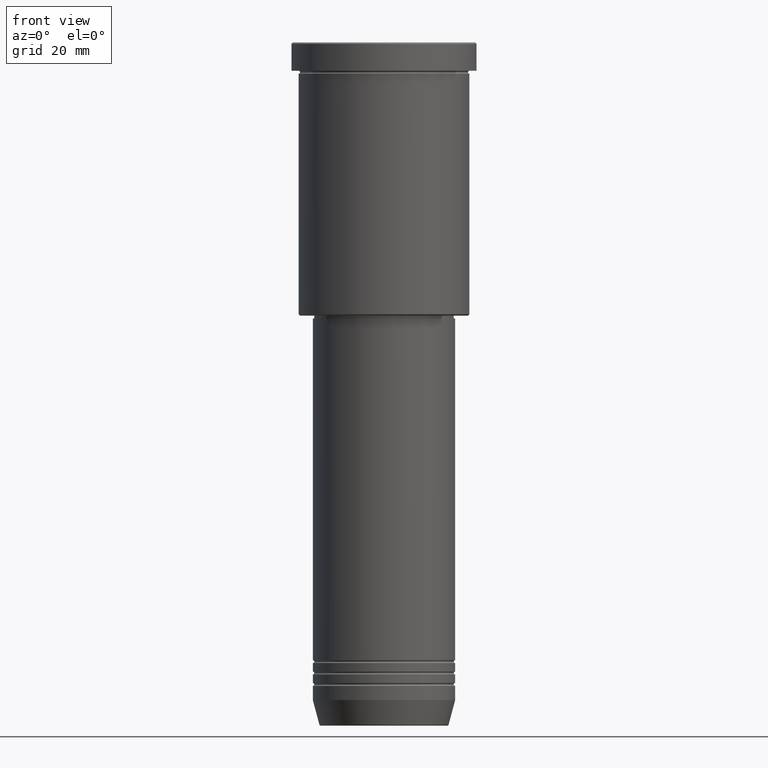
[diagram: clean part render]
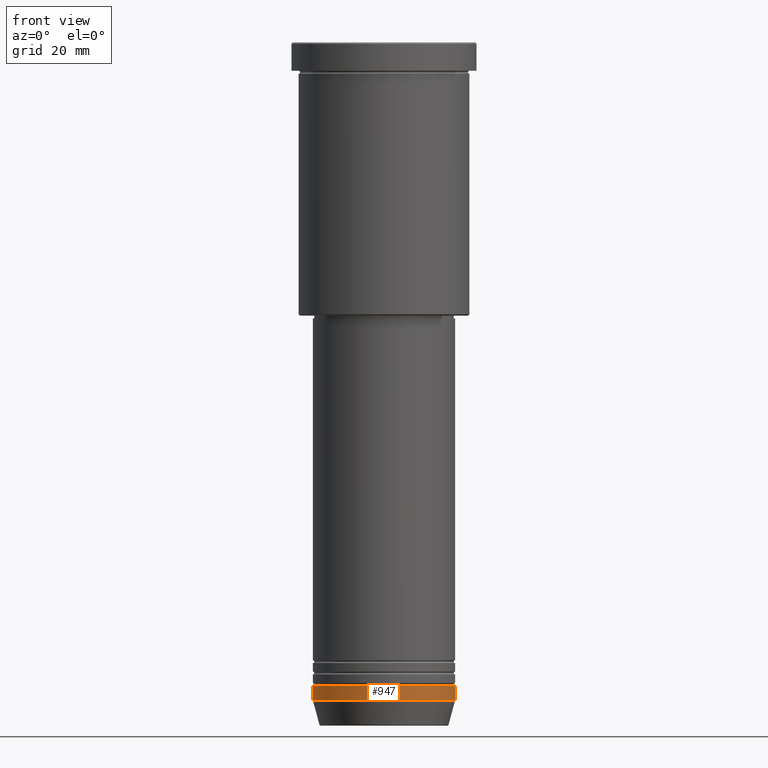
[diagram: same view with one face highlighted and labeled with its STEP entity id]
A machine part, front view. The second image highlights one B-rep face of the part: STEP entity #947.
In plain terms, the highlighted cylindrical surface (partial cylindrical patch) has radius 25 mm, axis along (-0, -0, 1).
Its self-contained STEP definition (entity closure, byte-faithful):
#42 = CARTESIAN_POINT ( 'NONE',  ( 0.000000000000000000, 0.000000000000000000, -231.0000000000000000 ) ) ;
#69 = CARTESIAN_POINT ( 'NONE',  ( -25.00000000000000000, 3.061616997868383043E-15, 0.000000000000000000 ) ) ;
#84 = VERTEX_POINT ( 'NONE', #546 ) ;
#91 = CIRCLE ( 'NONE', #801, 25.00000000000000000 ) ;
#96 = EDGE_CURVE ( 'NONE', #462, #84, #307, .T. ) ;
#160 = VECTOR ( 'NONE', #629, 1000.000000000000000 ) ;
#191 = CARTESIAN_POINT ( 'NONE',  ( -25.00000000000000000, 3.061616997868383043E-15, -231.0000000000000000 ) ) ;
#211 = EDGE_CURVE ( 'NONE', #274, #84, #1175, .T. ) ;
#220 = ORIENTED_EDGE ( 'NONE', *, *, #522, .F. ) ;
#228 = AXIS2_PLACEMENT_3D ( 'NONE', #916, #282, #553 ) ;
#231 = DIRECTION ( 'NONE',  ( 1.000000000000000000, 0.000000000000000000, 0.000000000000000000 ) ) ;
#274 = VERTEX_POINT ( 'NONE', #1036 ) ;
#282 = DIRECTION ( 'NONE',  ( -0.000000000000000000, -0.000000000000000000, 1.000000000000000000 ) ) ;
#292 = EDGE_LOOP ( 'NONE', ( #220, #1038, #455, #1148 ) ) ;
#307 = CIRCLE ( 'NONE', #228, 25.00000000000000000 ) ;
#362 = CARTESIAN_POINT ( 'NONE',  ( 25.00000000000000000, 0.000000000000000000, 0.000000000000000000 ) ) ;
#450 = EDGE_CURVE ( 'NONE', #779, #274, #91, .T. ) ;
#455 = ORIENTED_EDGE ( 'NONE', *, *, #211, .T. ) ;
#462 = VERTEX_POINT ( 'NONE', #1151 ) ;
#522 = EDGE_CURVE ( 'NONE', #779, #462, #891, .T. ) ;
#546 = CARTESIAN_POINT ( 'NONE',  ( 25.00000000000000000, 0.000000000000000000, -226.0000000000000000 ) ) ;
#553 = DIRECTION ( 'NONE',  ( 1.000000000000000000, 0.000000000000000000, 0.000000000000000000 ) ) ;
#568 = AXIS2_PLACEMENT_3D ( 'NONE', #586, #869, #231 ) ;
#586 = CARTESIAN_POINT ( 'NONE',  ( 0.000000000000000000, 0.000000000000000000, 0.000000000000000000 ) ) ;
#601 = DIRECTION ( 'NONE',  ( 1.000000000000000000, 0.000000000000000000, 0.000000000000000000 ) ) ;
#629 = DIRECTION ( 'NONE',  ( -0.000000000000000000, -0.000000000000000000, 1.000000000000000000 ) ) ;
#723 = DIRECTION ( 'NONE',  ( -0.000000000000000000, -0.000000000000000000, 1.000000000000000000 ) ) ;
#726 = VECTOR ( 'NONE', #723, 1000.000000000000000 ) ;
#771 = CYLINDRICAL_SURFACE ( 'NONE', #568, 25.00000000000000000 ) ;
#777 = FACE_OUTER_BOUND ( 'NONE', #292, .T. ) ;
#779 = VERTEX_POINT ( 'NONE', #191 ) ;
#801 = AXIS2_PLACEMENT_3D ( 'NONE', #42, #1147, #601 ) ;
#869 = DIRECTION ( 'NONE',  ( -0.000000000000000000, -0.000000000000000000, 1.000000000000000000 ) ) ;
#891 = LINE ( 'NONE', #69, #160 ) ;
#916 = CARTESIAN_POINT ( 'NONE',  ( 0.000000000000000000, 0.000000000000000000, -226.0000000000000000 ) ) ;
#947 = ADVANCED_FACE ( 'NONE', ( #777 ), #771, .T. ) ;
#1036 = CARTESIAN_POINT ( 'NONE',  ( 25.00000000000000000, 0.000000000000000000, -231.0000000000000000 ) ) ;
#1038 = ORIENTED_EDGE ( 'NONE', *, *, #450, .T. ) ;
#1147 = DIRECTION ( 'NONE',  ( -0.000000000000000000, -0.000000000000000000, 1.000000000000000000 ) ) ;
#1148 = ORIENTED_EDGE ( 'NONE', *, *, #96, .F. ) ;
#1151 = CARTESIAN_POINT ( 'NONE',  ( -25.00000000000000000, 3.061616997868383043E-15, -226.0000000000000000 ) ) ;
#1175 = LINE ( 'NONE', #362, #726 ) ;